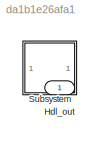
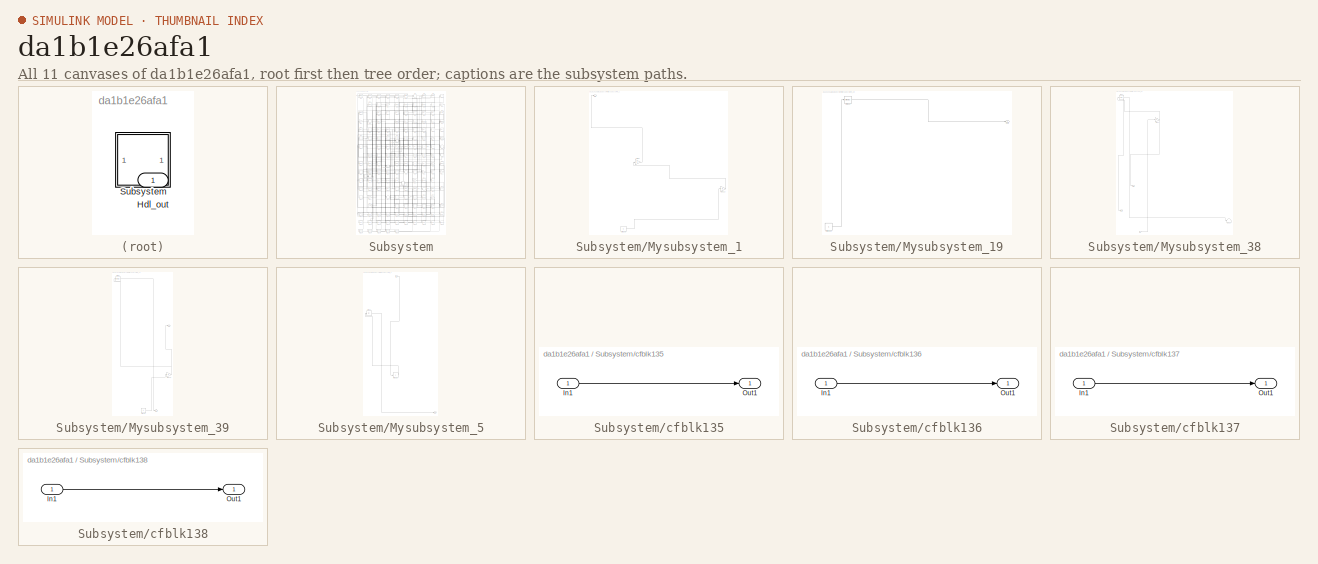
[diagram: thumbnail index - all 11 canvases of the model, root first then tree order]
MODEL slx_da1b1e26afa1
KIND model
CONFIG AbsTol = auto
CONFIG EnableMultiTasking = off
CONFIG FixedStep = auto
CONFIG MaxStep = auto
CONFIG MinStep = auto
CONFIG RelTol = 1e-3
CONFIG SampleTimeConstraint = Unconstrained
CONFIG SolverName = VariableStepAuto
CONFIG StartTime = 0.0
CONFIG StopTime = 10.0
BLOCK [Outport] Hdl_out
  OutDataTypeStr = uint8
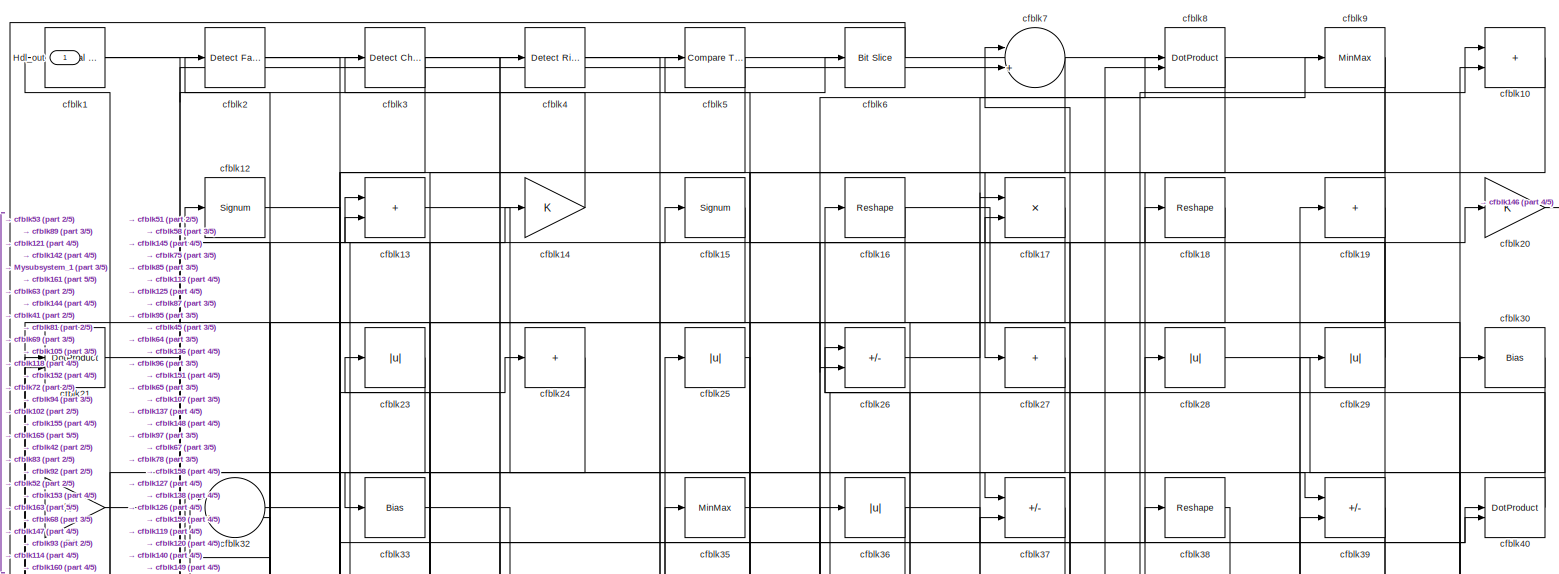
[diagram: Subsystem - part 1/5, full width, top band]
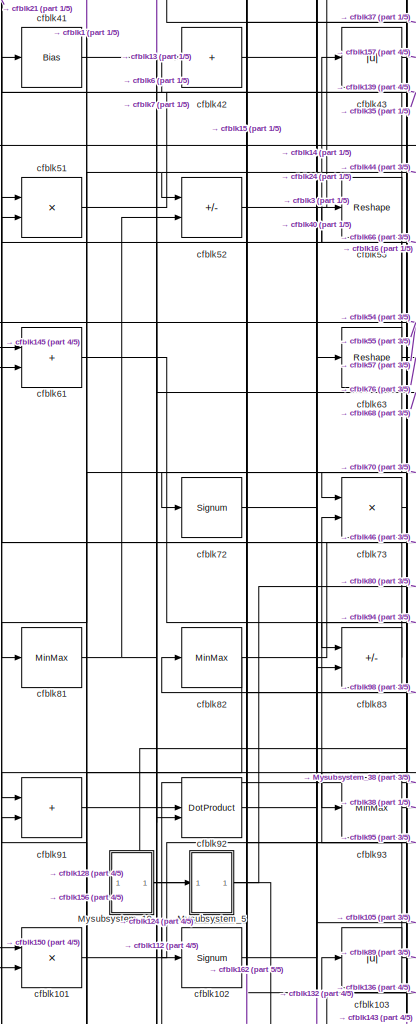
[diagram: Subsystem - part 2/5, middle left region]
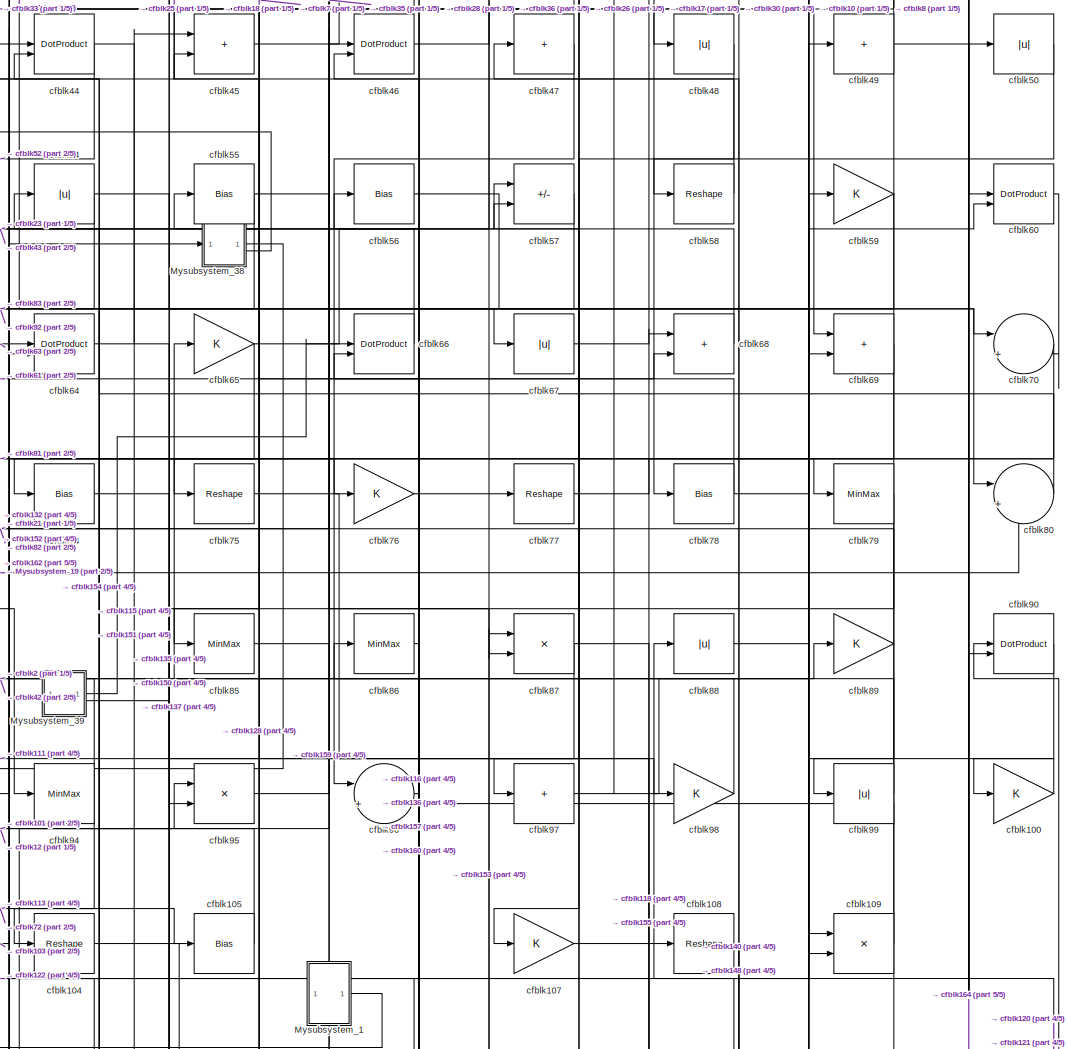
[diagram: Subsystem - part 3/5, central region]
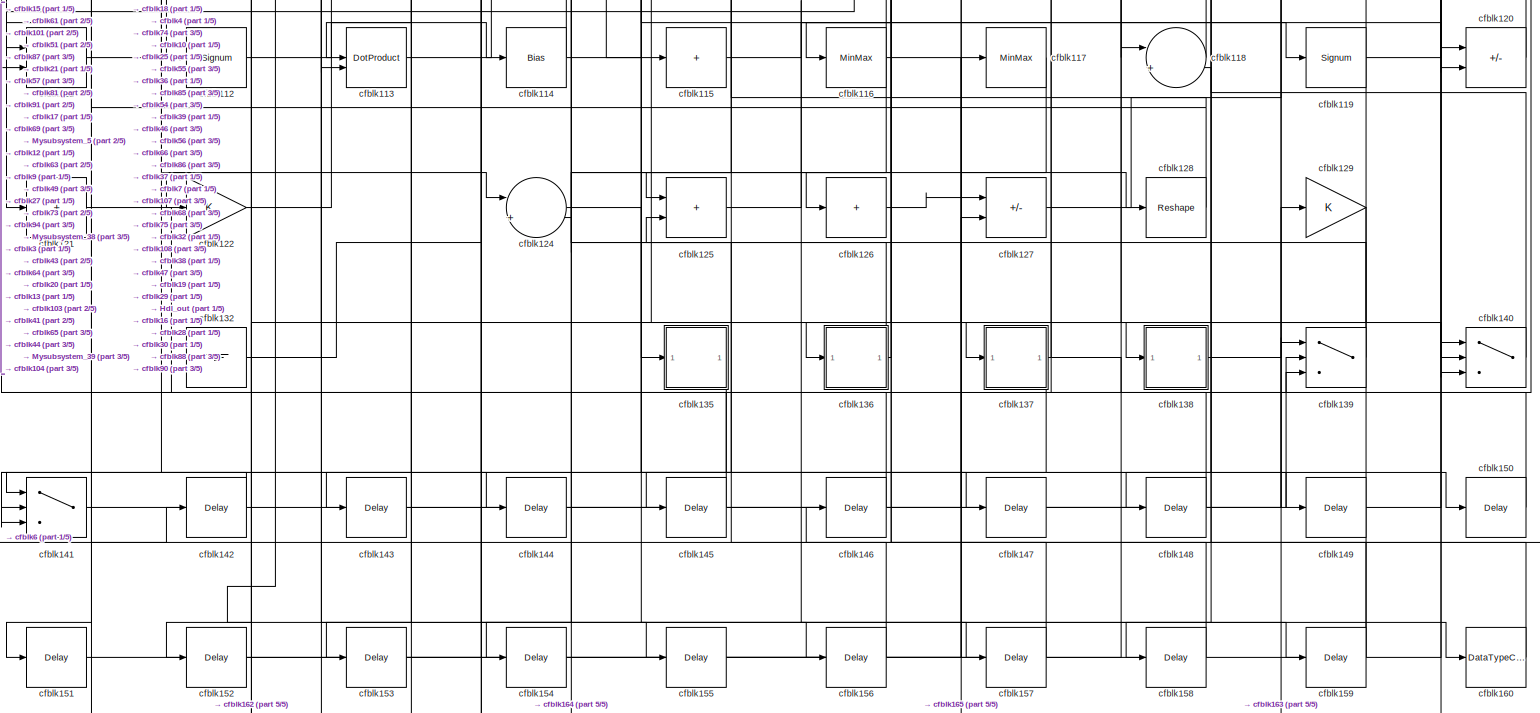
[diagram: Subsystem - part 4/5, full width, bottom band]
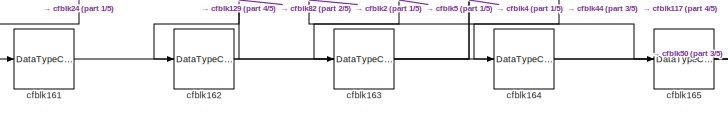
[diagram: Subsystem - part 5/5, bottom left region]
BLOCK [SubSystem] Subsystem
BLOCK [Outport] Subsystem/Hdl_out
  OutDataTypeStr = uint8
BLOCK [SubSystem] Subsystem/Mysubsystem_1
  RTWFcnName = Mysubsystem_1
  RTWFcnNameOpts = User specified
  RTWFileNameOpts = Use function name
  RTWSystemCode = Reusable function
  TreatAsAtomicUnit = on
BLOCK [Outport] Subsystem/Mysubsystem_1/Out1
BLOCK [Gain] Subsystem/Mysubsystem_1/cfblk110
BLOCK [Constant] Subsystem/Mysubsystem_1/cfblk133
  SampleTime = -1
BLOCK [Gain] Subsystem/Mysubsystem_1/cfblk84
BLOCK [SubSystem] Subsystem/Mysubsystem_19
  RTWFcnName = Mysubsystem_19
  RTWFcnNameOpts = User specified
  RTWFileNameOpts = Use function name
  RTWSystemCode = Reusable function
  TreatAsAtomicUnit = on
BLOCK [Outport] Subsystem/Mysubsystem_19/Out1
BLOCK [Constant] Subsystem/Mysubsystem_19/cfblk131
  SampleTime = -1
BLOCK [MinMax] Subsystem/Mysubsystem_19/cfblk62
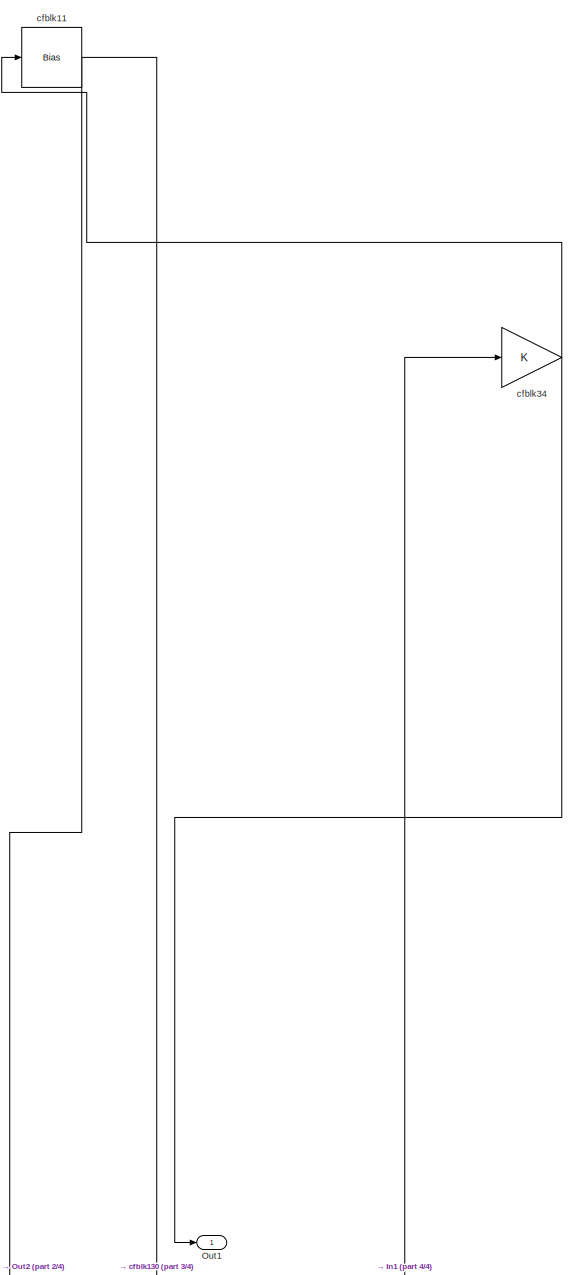
[diagram: Subsystem/Mysubsystem_38 - part 1/4, middle left region]
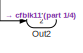
[diagram: Subsystem/Mysubsystem_38 - part 2/4, bottom left region]
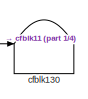
[diagram: Subsystem/Mysubsystem_38 - part 3/4, bottom right region]
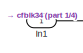
[diagram: Subsystem/Mysubsystem_38 - part 4/4, bottom left region]
BLOCK [SubSystem] Subsystem/Mysubsystem_38
  RTWFcnName = Mysubsystem_38
  RTWFcnNameOpts = User specified
  RTWFileNameOpts = Use function name
  RTWSystemCode = Reusable function
  TreatAsAtomicUnit = on
BLOCK [Inport] Subsystem/Mysubsystem_38/In1
BLOCK [Outport] Subsystem/Mysubsystem_38/Out1
BLOCK [Outport] Subsystem/Mysubsystem_38/Out2
  Port = 2
BLOCK [Bias] Subsystem/Mysubsystem_38/cfblk11
  Bias = 0.0
  SaturateOnIntegerOverflow = off
BLOCK [Terminator] Subsystem/Mysubsystem_38/cfblk130
BLOCK [Gain] Subsystem/Mysubsystem_38/cfblk34
BLOCK [SubSystem] Subsystem/Mysubsystem_39
  RTWFcnName = Mysubsystem_39
  RTWFcnNameOpts = User specified
  RTWFileNameOpts = Use function name
  RTWSystemCode = Reusable function
  TreatAsAtomicUnit = on
BLOCK [Outport] Subsystem/Mysubsystem_39/Out1
BLOCK [Outport] Subsystem/Mysubsystem_39/Out2
  Port = 2
BLOCK [Gain] Subsystem/Mysubsystem_39/cfblk106
BLOCK [Constant] Subsystem/Mysubsystem_39/cfblk134
  SampleTime = -1
BLOCK [MinMax] Subsystem/Mysubsystem_39/cfblk22
BLOCK [SubSystem] Subsystem/Mysubsystem_5
  RTWFcnName = Mysubsystem_5
  RTWFcnNameOpts = User specified
  RTWFileNameOpts = Use function name
  RTWSystemCode = Reusable function
  TreatAsAtomicUnit = on
BLOCK [Inport] Subsystem/Mysubsystem_5/In1
BLOCK [Outport] Subsystem/Mysubsystem_5/Out1
BLOCK [Sum] Subsystem/Mysubsystem_5/cfblk123
  IconShape = rectangular
  Inputs = +
BLOCK [Abs] Subsystem/Mysubsystem_5/cfblk71
  SaturateOnIntegerOverflow = off
BLOCK [Reference] Subsystem/cfblk1  REF=hdlsllib/Logic and Bit
Operations/Interval Test
  SourceBlock = hdlsllib/Logic and Bit\nOperations/Interval Test
  SourceType = Interval Test
BLOCK [Sum] Subsystem/cfblk10
  IconShape = rectangular
  OutDataTypeStr = uint8
BLOCK [Gain] Subsystem/cfblk100
  OutDataTypeStr = uint8
BLOCK [Product] Subsystem/cfblk101
  Inputs = */
  OutDataTypeStr = uint8
  RndMeth = Zero
  SaturateOnIntegerOverflow = on
BLOCK [Signum] Subsystem/cfblk102
BLOCK [Abs] Subsystem/cfblk103
  OutDataTypeStr = uint8
  SaturateOnIntegerOverflow = off
BLOCK [Reshape] Subsystem/cfblk104
BLOCK [Bias] Subsystem/cfblk105
  Bias = 0.0
  SaturateOnIntegerOverflow = off
BLOCK [Gain] Subsystem/cfblk107
  OutDataTypeStr = uint8
BLOCK [Reshape] Subsystem/cfblk108
BLOCK [Product] Subsystem/cfblk109
  Inputs = */
  OutDataTypeStr = uint8
  RndMeth = Zero
  SaturateOnIntegerOverflow = on
BLOCK [Product] Subsystem/cfblk111
  Inputs = */
  OutDataTypeStr = uint8
  RndMeth = Zero
  SaturateOnIntegerOverflow = on
BLOCK [Signum] Subsystem/cfblk112
BLOCK [DotProduct] Subsystem/cfblk113
  OutDataTypeStr = uint8
BLOCK [Bias] Subsystem/cfblk114
  Bias = 0.0
  SaturateOnIntegerOverflow = off
BLOCK [Sum] Subsystem/cfblk115
  IconShape = rectangular
  Inputs = +
  OutDataTypeStr = uint8
BLOCK [MinMax] Subsystem/cfblk116
  OutDataTypeStr = uint8
BLOCK [MinMax] Subsystem/cfblk117
  OutDataTypeStr = uint8
BLOCK [Sum] Subsystem/cfblk118
  Inputs = |++
  OutDataTypeStr = uint8
BLOCK [Signum] Subsystem/cfblk119
BLOCK [Signum] Subsystem/cfblk12
BLOCK [Sum] Subsystem/cfblk120
  IconShape = rectangular
  Inputs = +-
  OutDataTypeStr = uint8
BLOCK [Sum] Subsystem/cfblk121
  IconShape = rectangular
  Inputs = +
  OutDataTypeStr = uint8
BLOCK [Gain] Subsystem/cfblk122
  OutDataTypeStr = uint8
BLOCK [Sum] Subsystem/cfblk124
  Inputs = |++
  OutDataTypeStr = uint8
BLOCK [Sum] Subsystem/cfblk125
  IconShape = rectangular
  OutDataTypeStr = uint8
BLOCK [Sum] Subsystem/cfblk126
  IconShape = rectangular
  Inputs = +
  OutDataTypeStr = uint8
BLOCK [Sum] Subsystem/cfblk127
  IconShape = rectangular
  Inputs = +-
  OutDataTypeStr = uint8
BLOCK [Reshape] Subsystem/cfblk128
BLOCK [Gain] Subsystem/cfblk129
  OutDataTypeStr = uint8
BLOCK [Sum] Subsystem/cfblk13
  IconShape = rectangular
  OutDataTypeStr = uint8
BLOCK [Ground] Subsystem/cfblk132
BLOCK [SubSystem] Subsystem/cfblk135
  LibrarySourceBlock = hdlsllib/Ports &\nSubsystems/Subsystem
BLOCK [Inport] Subsystem/cfblk135/In1
BLOCK [Outport] Subsystem/cfblk135/Out1
BLOCK [SubSystem] Subsystem/cfblk136
  LibrarySourceBlock = hdlsllib/Ports &\nSubsystems/Subsystem
BLOCK [Inport] Subsystem/cfblk136/In1
BLOCK [Outport] Subsystem/cfblk136/Out1
BLOCK [SubSystem] Subsystem/cfblk137
  LibrarySourceBlock = hdlsllib/Ports &\nSubsystems/Subsystem
BLOCK [Inport] Subsystem/cfblk137/In1
BLOCK [Outport] Subsystem/cfblk137/Out1
BLOCK [SubSystem] Subsystem/cfblk138
  LibrarySourceBlock = hdlsllib/Ports &\nSubsystems/Subsystem
BLOCK [Inport] Subsystem/cfblk138/In1
BLOCK [Outport] Subsystem/cfblk138/Out1
BLOCK [Switch] Subsystem/cfblk139
  InputSameDT = off
  OutDataTypeStr = uint8
  SaturateOnIntegerOverflow = off
BLOCK [Gain] Subsystem/cfblk14
  OutDataTypeStr = uint8
BLOCK [Switch] Subsystem/cfblk140
  InputSameDT = off
  OutDataTypeStr = uint8
  SaturateOnIntegerOverflow = off
BLOCK [Switch] Subsystem/cfblk141
  InputSameDT = off
  OutDataTypeStr = uint8
  SaturateOnIntegerOverflow = off
BLOCK [Delay] Subsystem/cfblk142
  InputPortMap = u0
  SampleTime = 1
BLOCK [Delay] Subsystem/cfblk143
  InputPortMap = u0
  SampleTime = 1
BLOCK [Delay] Subsystem/cfblk144
  InputPortMap = u0
  SampleTime = 1
BLOCK [Delay] Subsystem/cfblk145
  InputPortMap = u0
  SampleTime = 1
BLOCK [Delay] Subsystem/cfblk146
  InputPortMap = u0
  SampleTime = 1
BLOCK [Delay] Subsystem/cfblk147
  InputPortMap = u0
  SampleTime = 1
BLOCK [Delay] Subsystem/cfblk148
  InputPortMap = u0
  SampleTime = 1
BLOCK [Delay] Subsystem/cfblk149
  InputPortMap = u0
  SampleTime = 1
BLOCK [Signum] Subsystem/cfblk15
BLOCK [Delay] Subsystem/cfblk150
  InputPortMap = u0
  SampleTime = 1
BLOCK [Delay] Subsystem/cfblk151
  InputPortMap = u0
  SampleTime = 1
BLOCK [Delay] Subsystem/cfblk152
  InputPortMap = u0
  SampleTime = 1
BLOCK [Delay] Subsystem/cfblk153
  InputPortMap = u0
  SampleTime = 1
BLOCK [Delay] Subsystem/cfblk154
  InputPortMap = u0
  SampleTime = 1
BLOCK [Delay] Subsystem/cfblk155
  InputPortMap = u0
  SampleTime = 1
BLOCK [Delay] Subsystem/cfblk156
  InputPortMap = u0
  SampleTime = 1
BLOCK [Delay] Subsystem/cfblk157
  InputPortMap = u0
  SampleTime = 1
BLOCK [Delay] Subsystem/cfblk158
  InputPortMap = u0
  SampleTime = 1
BLOCK [Delay] Subsystem/cfblk159
  InputPortMap = u0
  SampleTime = 1
BLOCK [Reshape] Subsystem/cfblk16
BLOCK [DataTypeConversion] Subsystem/cfblk160
  OutDataTypeStr = uint8
  RndMeth = Floor
  SaturateOnIntegerOverflow = off
BLOCK [DataTypeConversion] Subsystem/cfblk161
  OutDataTypeStr = uint8
  RndMeth = Floor
  SaturateOnIntegerOverflow = off
BLOCK [DataTypeConversion] Subsystem/cfblk162
  OutDataTypeStr = uint8
  RndMeth = Floor
  SaturateOnIntegerOverflow = off
BLOCK [DataTypeConversion] Subsystem/cfblk163
  OutDataTypeStr = uint8
  RndMeth = Floor
  SaturateOnIntegerOverflow = off
BLOCK [DataTypeConversion] Subsystem/cfblk164
  OutDataTypeStr = uint8
  RndMeth = Floor
  SaturateOnIntegerOverflow = off
BLOCK [DataTypeConversion] Subsystem/cfblk165
  OutDataTypeStr = uint8
  RndMeth = Floor
  SaturateOnIntegerOverflow = off
BLOCK [Product] Subsystem/cfblk17
  Inputs = */
  OutDataTypeStr = uint8
  RndMeth = Zero
  SaturateOnIntegerOverflow = on
BLOCK [Reshape] Subsystem/cfblk18
BLOCK [Sum] Subsystem/cfblk19
  IconShape = rectangular
  Inputs = +
  OutDataTypeStr = uint8
BLOCK [Reference] Subsystem/cfblk2  REF=hdlsllib/Logic and Bit
Operations/Detect Fall
Nonpositive
  SourceBlock = hdlsllib/Logic and Bit\nOperations/Detect Fall\nNonpositive
  SourceType = Detect Fall Nonpositive
BLOCK [Gain] Subsystem/cfblk20
  OutDataTypeStr = uint8
BLOCK [DotProduct] Subsystem/cfblk21
  OutDataTypeStr = uint8
BLOCK [Abs] Subsystem/cfblk23
  OutDataTypeStr = uint8
  SaturateOnIntegerOverflow = off
BLOCK [Sum] Subsystem/cfblk24
  IconShape = rectangular
  Inputs = +
  OutDataTypeStr = uint8
BLOCK [Abs] Subsystem/cfblk25
  OutDataTypeStr = uint8
  SaturateOnIntegerOverflow = off
BLOCK [Sum] Subsystem/cfblk26
  IconShape = rectangular
  Inputs = +-
  OutDataTypeStr = uint8
BLOCK [Sum] Subsystem/cfblk27
  IconShape = rectangular
  Inputs = +
  OutDataTypeStr = uint8
BLOCK [Abs] Subsystem/cfblk28
  OutDataTypeStr = uint8
  SaturateOnIntegerOverflow = off
BLOCK [Abs] Subsystem/cfblk29
  OutDataTypeStr = uint8
  SaturateOnIntegerOverflow = off
BLOCK [Reference] Subsystem/cfblk3  REF=simulink/Logic and Bit
Operations/Detect
Change
  LibrarySourceBlock = hdlsllib/Logic and Bit\nOperations/Detect\nChange
  SourceBlock = simulink/Logic and Bit\nOperations/Detect\nChange
  SourceType = Detect Change
BLOCK [Bias] Subsystem/cfblk30
  Bias = 0.0
  SaturateOnIntegerOverflow = off
BLOCK [Gain] Subsystem/cfblk31
  OutDataTypeStr = uint8
BLOCK [Sum] Subsystem/cfblk32
  Inputs = |++
  OutDataTypeStr = uint8
BLOCK [Bias] Subsystem/cfblk33
  Bias = 0.0
  SaturateOnIntegerOverflow = off
BLOCK [MinMax] Subsystem/cfblk35
  OutDataTypeStr = uint8
BLOCK [Abs] Subsystem/cfblk36
  OutDataTypeStr = uint8
  SaturateOnIntegerOverflow = off
BLOCK [Sum] Subsystem/cfblk37
  IconShape = rectangular
  Inputs = +-
  OutDataTypeStr = uint8
BLOCK [Reshape] Subsystem/cfblk38
BLOCK [Sum] Subsystem/cfblk39
  IconShape = rectangular
  Inputs = +-
  OutDataTypeStr = uint8
BLOCK [Reference] Subsystem/cfblk4  REF=hdlsllib/Logic and Bit
Operations/Detect Rise
Positive
  SourceBlock = hdlsllib/Logic and Bit\nOperations/Detect Rise\nPositive
  SourceType = Detect Rise Positive
BLOCK [DotProduct] Subsystem/cfblk40
  OutDataTypeStr = uint8
BLOCK [Bias] Subsystem/cfblk41
  Bias = 0.0
  SaturateOnIntegerOverflow = off
BLOCK [Sum] Subsystem/cfblk42
  IconShape = rectangular
  Inputs = +
  OutDataTypeStr = uint8
BLOCK [Abs] Subsystem/cfblk43
  OutDataTypeStr = uint8
  SaturateOnIntegerOverflow = off
BLOCK [DotProduct] Subsystem/cfblk44
  OutDataTypeStr = uint8
BLOCK [Sum] Subsystem/cfblk45
  IconShape = rectangular
  OutDataTypeStr = uint8
BLOCK [DotProduct] Subsystem/cfblk46
  OutDataTypeStr = uint8
BLOCK [Sum] Subsystem/cfblk47
  IconShape = rectangular
  Inputs = +
  OutDataTypeStr = uint8
BLOCK [Abs] Subsystem/cfblk48
  OutDataTypeStr = uint8
  SaturateOnIntegerOverflow = off
BLOCK [Sum] Subsystem/cfblk49
  IconShape = rectangular
  Inputs = +
  OutDataTypeStr = uint8
BLOCK [Reference] Subsystem/cfblk5  REF=hdlsllib/Logic and Bit
Operations/Compare
To Constant
  SourceBlock = hdlsllib/Logic and Bit\nOperations/Compare\nTo Constant
  SourceType = Compare To Constant
BLOCK [Abs] Subsystem/cfblk50
  OutDataTypeStr = uint8
  SaturateOnIntegerOverflow = off
BLOCK [Product] Subsystem/cfblk51
  Inputs = */
  OutDataTypeStr = uint8
  RndMeth = Zero
  SaturateOnIntegerOverflow = on
BLOCK [Sum] Subsystem/cfblk52
  IconShape = rectangular
  Inputs = +-
  OutDataTypeStr = uint8
BLOCK [Reshape] Subsystem/cfblk53
BLOCK [Abs] Subsystem/cfblk54
  OutDataTypeStr = uint8
  SaturateOnIntegerOverflow = off
BLOCK [Bias] Subsystem/cfblk55
  Bias = 0.0
  SaturateOnIntegerOverflow = off
BLOCK [Bias] Subsystem/cfblk56
  Bias = 0.0
  SaturateOnIntegerOverflow = off
BLOCK [Sum] Subsystem/cfblk57
  IconShape = rectangular
  Inputs = +-
  OutDataTypeStr = uint8
BLOCK [Reshape] Subsystem/cfblk58
BLOCK [Gain] Subsystem/cfblk59
  OutDataTypeStr = uint8
BLOCK [Reference] Subsystem/cfblk6  REF=hdlsllib/Logic and Bit
Operations/Bit Slice
  SourceBlock = hdlsllib/Logic and Bit\nOperations/Bit Slice
  SourceType = Bit Slice
BLOCK [DotProduct] Subsystem/cfblk60
  OutDataTypeStr = uint8
BLOCK [Sum] Subsystem/cfblk61
  IconShape = rectangular
  OutDataTypeStr = uint8
BLOCK [Reshape] Subsystem/cfblk63
BLOCK [DotProduct] Subsystem/cfblk64
  OutDataTypeStr = uint8
BLOCK [Gain] Subsystem/cfblk65
  OutDataTypeStr = uint8
BLOCK [DotProduct] Subsystem/cfblk66
  OutDataTypeStr = uint8
BLOCK [Abs] Subsystem/cfblk67
  OutDataTypeStr = uint8
  SaturateOnIntegerOverflow = off
BLOCK [Sum] Subsystem/cfblk68
  IconShape = rectangular
  OutDataTypeStr = uint8
BLOCK [Sum] Subsystem/cfblk69
  IconShape = rectangular
  OutDataTypeStr = uint8
BLOCK [Sum] Subsystem/cfblk7
  Inputs = |++
  OutDataTypeStr = uint8
BLOCK [Sum] Subsystem/cfblk70
  Inputs = |++
  OutDataTypeStr = uint8
BLOCK [Signum] Subsystem/cfblk72
BLOCK [Product] Subsystem/cfblk73
  Inputs = */
  OutDataTypeStr = uint8
  RndMeth = Zero
  SaturateOnIntegerOverflow = on
BLOCK [Bias] Subsystem/cfblk74
  Bias = 0.0
  SaturateOnIntegerOverflow = off
BLOCK [Reshape] Subsystem/cfblk75
BLOCK [Gain] Subsystem/cfblk76
  OutDataTypeStr = uint8
BLOCK [Reshape] Subsystem/cfblk77
BLOCK [Bias] Subsystem/cfblk78
  Bias = 0.0
  SaturateOnIntegerOverflow = off
BLOCK [MinMax] Subsystem/cfblk79
  OutDataTypeStr = uint8
BLOCK [DotProduct] Subsystem/cfblk8
  OutDataTypeStr = uint8
BLOCK [Sum] Subsystem/cfblk80
  Inputs = |++
  OutDataTypeStr = uint8
BLOCK [MinMax] Subsystem/cfblk81
  OutDataTypeStr = uint8
BLOCK [MinMax] Subsystem/cfblk82
  OutDataTypeStr = uint8
BLOCK [Sum] Subsystem/cfblk83
  IconShape = rectangular
  Inputs = +-
  OutDataTypeStr = uint8
BLOCK [MinMax] Subsystem/cfblk85
  OutDataTypeStr = uint8
BLOCK [MinMax] Subsystem/cfblk86
  OutDataTypeStr = uint8
BLOCK [Product] Subsystem/cfblk87
  Inputs = */
  OutDataTypeStr = uint8
  RndMeth = Zero
  SaturateOnIntegerOverflow = on
BLOCK [Abs] Subsystem/cfblk88
  OutDataTypeStr = uint8
  SaturateOnIntegerOverflow = off
BLOCK [Gain] Subsystem/cfblk89
  OutDataTypeStr = uint8
BLOCK [MinMax] Subsystem/cfblk9
  OutDataTypeStr = uint8
BLOCK [DotProduct] Subsystem/cfblk90
  OutDataTypeStr = uint8
BLOCK [Sum] Subsystem/cfblk91
  IconShape = rectangular
  OutDataTypeStr = uint8
BLOCK [DotProduct] Subsystem/cfblk92
  OutDataTypeStr = uint8
BLOCK [MinMax] Subsystem/cfblk93
  OutDataTypeStr = uint8
BLOCK [MinMax] Subsystem/cfblk94
  OutDataTypeStr = uint8
BLOCK [Product] Subsystem/cfblk95
  Inputs = */
  OutDataTypeStr = uint8
  RndMeth = Zero
  SaturateOnIntegerOverflow = on
BLOCK [Sum] Subsystem/cfblk96
  Inputs = |++
  OutDataTypeStr = uint8
BLOCK [Sum] Subsystem/cfblk97
  IconShape = rectangular
  Inputs = +
  OutDataTypeStr = uint8
BLOCK [Gain] Subsystem/cfblk98
  OutDataTypeStr = uint8
BLOCK [Abs] Subsystem/cfblk99
  OutDataTypeStr = uint8
  SaturateOnIntegerOverflow = off
LINE Subsystem/Mysubsystem_1/cfblk110:1 -> Subsystem/Mysubsystem_1/cfblk84:1
LINE Subsystem/Mysubsystem_1/cfblk133:1 -> Subsystem/Mysubsystem_1/cfblk110:1
LINE Subsystem/Mysubsystem_1/cfblk84:1 -> Subsystem/Mysubsystem_1/Out1:1
LINE Subsystem/Mysubsystem_19/cfblk131:1 -> Subsystem/Mysubsystem_19/cfblk62:1
LINE Subsystem/Mysubsystem_19/cfblk62:1 -> Subsystem/Mysubsystem_19/Out1:1
LINE Subsystem/Mysubsystem_19:1 -> Subsystem/cfblk80:2
LINE Subsystem/Mysubsystem_1:1 -> Subsystem/cfblk31:1
LINE Subsystem/Mysubsystem_38/In1:1 -> Subsystem/Mysubsystem_38/cfblk34:1
NET Subsystem/Mysubsystem_38/cfblk11:1 -> Subsystem/Mysubsystem_38/Out2:1, Subsystem/Mysubsystem_38/cfblk130:1
NET Subsystem/Mysubsystem_38/cfblk34:1 -> Subsystem/Mysubsystem_38/Out1:1, Subsystem/Mysubsystem_38/cfblk11:1
LINE Subsystem/Mysubsystem_38:1 -> Subsystem/cfblk92:1
LINE Subsystem/Mysubsystem_38:2 -> Subsystem/cfblk111:2
NET Subsystem/Mysubsystem_39/cfblk106:1 -> Subsystem/Mysubsystem_39/Out1:1, Subsystem/Mysubsystem_39/cfblk22:1
LINE Subsystem/Mysubsystem_39/cfblk134:1 -> Subsystem/Mysubsystem_39/cfblk106:1
LINE Subsystem/Mysubsystem_39/cfblk22:1 -> Subsystem/Mysubsystem_39/Out2:1
LINE Subsystem/Mysubsystem_39:1 -> Subsystem/cfblk66:1
LINE Subsystem/Mysubsystem_39:2 -> Subsystem/cfblk135:1
LINE Subsystem/Mysubsystem_5/In1:1 -> Subsystem/Mysubsystem_5/cfblk123:1
LINE Subsystem/Mysubsystem_5/cfblk123:1 -> Subsystem/Mysubsystem_5/cfblk71:1
LINE Subsystem/Mysubsystem_5/cfblk71:1 -> Subsystem/Mysubsystem_5/Out1:1
LINE Subsystem/Mysubsystem_5:1 -> Subsystem/cfblk156:1
LINE Subsystem/cfblk100:1 -> Subsystem/cfblk99:1
LINE Subsystem/cfblk101:1 -> Subsystem/cfblk95:1
LINE Subsystem/cfblk102:1 -> Subsystem/cfblk24:1
NET Subsystem/cfblk103:1 -> Subsystem/cfblk53:1, Subsystem/cfblk73:2, Subsystem/cfblk89:1
NET Subsystem/cfblk104:1 -> Subsystem/cfblk120:2, Subsystem/cfblk137:1
LINE Subsystem/cfblk105:1 -> Subsystem/cfblk12:1
LINE Subsystem/cfblk107:1 -> Subsystem/cfblk140:2
LINE Subsystem/cfblk108:1 -> Subsystem/cfblk148:1
LINE Subsystem/cfblk109:1 -> Subsystem/cfblk96:2
LINE Subsystem/cfblk10:1 -> Subsystem/cfblk125:1
LINE Subsystem/cfblk111:1 -> Subsystem/cfblk57:1
LINE Subsystem/cfblk112:1 -> Subsystem/cfblk114:1
LINE Subsystem/cfblk113:1 -> Subsystem/cfblk20:1
NET Subsystem/cfblk114:1 -> Subsystem/cfblk13:1, Subsystem/cfblk18:1
LINE Subsystem/cfblk115:1 -> Subsystem/cfblk119:1
NET Subsystem/cfblk116:1 -> Subsystem/cfblk124:2, Subsystem/cfblk128:1, Subsystem/cfblk140:3, Subsystem/cfblk54:1
LINE Subsystem/cfblk117:1 -> Subsystem/cfblk164:1
LINE Subsystem/cfblk118:1 -> Subsystem/cfblk32:2
LINE Subsystem/cfblk119:1 -> Subsystem/cfblk30:1
LINE Subsystem/cfblk120:1 -> Subsystem/cfblk88:1
LINE Subsystem/cfblk121:1 -> Subsystem/cfblk90:1
LINE Subsystem/cfblk122:1 -> Subsystem/cfblk49:1
LINE Subsystem/cfblk124:1 -> Subsystem/cfblk149:1
LINE Subsystem/cfblk125:1 -> Subsystem/cfblk36:1
LINE Subsystem/cfblk126:1 -> Subsystem/cfblk127:1
LINE Subsystem/cfblk127:1 -> Subsystem/cfblk29:1
NET Subsystem/cfblk128:1 -> Subsystem/cfblk55:1, Subsystem/cfblk91:2
LINE Subsystem/cfblk129:1 -> Subsystem/cfblk162:1
LINE Subsystem/cfblk12:1 -> Subsystem/cfblk155:1
NET Subsystem/cfblk132:1 -> Subsystem/Mysubsystem_38:1, Subsystem/cfblk63:1
LINE Subsystem/cfblk135/In1:1 -> Subsystem/cfblk135/Out1:1
LINE Subsystem/cfblk135:1 -> Subsystem/cfblk141:2
LINE Subsystem/cfblk136/In1:1 -> Subsystem/cfblk136/Out1:1
NET Subsystem/cfblk136:1 -> Subsystem/cfblk103:1, Subsystem/cfblk86:1
LINE Subsystem/cfblk137/In1:1 -> Subsystem/cfblk137/Out1:1
NET Subsystem/cfblk137:1 -> Subsystem/cfblk139:3, Subsystem/cfblk141:3, Subsystem/cfblk17:2
LINE Subsystem/cfblk138/In1:1 -> Subsystem/cfblk138/Out1:1
LINE Subsystem/cfblk138:1 -> Subsystem/cfblk19:1
LINE Subsystem/cfblk139:1 -> Subsystem/cfblk41:1
LINE Subsystem/cfblk13:1 -> Subsystem/cfblk37:1
LINE Subsystem/cfblk140:1 -> Subsystem/cfblk47:1
LINE Subsystem/cfblk141:1 -> Subsystem/cfblk139:2
LINE Subsystem/cfblk142:1 -> Subsystem/cfblk141:1
LINE Subsystem/cfblk143:1 -> Subsystem/cfblk139:1
LINE Subsystem/cfblk144:1 -> Subsystem/cfblk127:2
LINE Subsystem/cfblk145:1 -> Subsystem/cfblk61:1
LINE Subsystem/cfblk146:1 -> Subsystem/cfblk32:1
LINE Subsystem/cfblk147:1 -> Subsystem/cfblk39:2
LINE Subsystem/cfblk148:1 -> Subsystem/cfblk7:1
LINE Subsystem/cfblk149:1 -> Subsystem/cfblk10:2
LINE Subsystem/cfblk14:1 -> Subsystem/cfblk3:1
LINE Subsystem/cfblk150:1 -> Subsystem/cfblk101:1
LINE Subsystem/cfblk151:1 -> Subsystem/cfblk37:2
LINE Subsystem/cfblk152:1 -> Subsystem/cfblk64:1
LINE Subsystem/cfblk153:1 -> Subsystem/cfblk87:1
LINE Subsystem/cfblk154:1 -> Subsystem/cfblk90:2
LINE Subsystem/cfblk155:1 -> Subsystem/cfblk68:1
LINE Subsystem/cfblk156:1 -> Subsystem/cfblk51:2
LINE Subsystem/cfblk157:1 -> Subsystem/cfblk46:2
LINE Subsystem/cfblk158:1 -> Subsystem/cfblk125:2
NET Subsystem/cfblk159:1 -> Subsystem/Hdl_out:1, Subsystem/cfblk118:2
NET Subsystem/cfblk15:1 -> Subsystem/cfblk121:1, Subsystem/cfblk72:1
NET Subsystem/cfblk160:1 -> Subsystem/cfblk56:1, Subsystem/cfblk66:2
LINE Subsystem/cfblk161:1 -> Subsystem/cfblk4:1
NET Subsystem/cfblk162:1 -> Subsystem/cfblk44:1, Subsystem/cfblk82:1
LINE Subsystem/cfblk163:1 -> Subsystem/cfblk129:1
LINE Subsystem/cfblk164:1 -> Subsystem/cfblk50:1
LINE Subsystem/cfblk165:1 -> Subsystem/cfblk117:1
NET Subsystem/cfblk16:1 -> Subsystem/cfblk120:1, Subsystem/cfblk93:1
NET Subsystem/cfblk17:1 -> Subsystem/cfblk152:1, Subsystem/cfblk26:2
LINE Subsystem/cfblk18:1 -> Subsystem/cfblk85:1
LINE Subsystem/cfblk19:1 -> Subsystem/cfblk136:1
LINE Subsystem/cfblk1:1 -> Subsystem/cfblk39:1
LINE Subsystem/cfblk20:1 -> Subsystem/cfblk146:1
LINE Subsystem/cfblk21:1 -> Subsystem/cfblk144:1
LINE Subsystem/cfblk23:1 -> Subsystem/cfblk33:1
LINE Subsystem/cfblk24:1 -> Subsystem/cfblk161:1
LINE Subsystem/cfblk25:1 -> Subsystem/cfblk145:1
LINE Subsystem/cfblk26:1 -> Subsystem/cfblk9:1
LINE Subsystem/cfblk27:1 -> Subsystem/cfblk153:1
LINE Subsystem/cfblk28:1 -> Subsystem/cfblk140:1
LINE Subsystem/cfblk29:1 -> Subsystem/cfblk5:1
LINE Subsystem/cfblk2:1 -> Subsystem/cfblk165:1
LINE Subsystem/cfblk30:1 -> Subsystem/cfblk107:1
LINE Subsystem/cfblk31:1 -> Subsystem/cfblk69:1
LINE Subsystem/cfblk32:1 -> Subsystem/cfblk138:1
LINE Subsystem/cfblk33:1 -> Subsystem/cfblk67:1
LINE Subsystem/cfblk35:1 -> Subsystem/cfblk87:2
NET Subsystem/cfblk36:1 -> Subsystem/cfblk40:2, Subsystem/cfblk64:2
LINE Subsystem/cfblk37:1 -> Subsystem/cfblk102:1
LINE Subsystem/cfblk38:1 -> Subsystem/cfblk158:1
LINE Subsystem/cfblk39:1 -> Subsystem/cfblk126:1
NET Subsystem/cfblk3:1 -> Subsystem/cfblk147:1, Subsystem/cfblk83:2
LINE Subsystem/cfblk40:1 -> Subsystem/cfblk16:1
NET Subsystem/cfblk41:1 -> Subsystem/cfblk6:1, Subsystem/cfblk7:2
LINE Subsystem/cfblk42:1 -> Subsystem/cfblk14:1
NET Subsystem/cfblk43:1 -> Subsystem/Mysubsystem_5:1, Subsystem/cfblk157:1
NET Subsystem/cfblk44:1 -> Subsystem/cfblk115:1, Subsystem/cfblk151:1, Subsystem/cfblk52:1
LINE Subsystem/cfblk45:1 -> Subsystem/cfblk28:1
LINE Subsystem/cfblk46:1 -> Subsystem/cfblk48:1
LINE Subsystem/cfblk47:1 -> Subsystem/cfblk96:1
LINE Subsystem/cfblk48:1 -> Subsystem/cfblk97:1
LINE Subsystem/cfblk49:1 -> Subsystem/cfblk60:1
LINE Subsystem/cfblk4:1 -> Subsystem/cfblk160:1
LINE Subsystem/cfblk50:1 -> Subsystem/cfblk58:1
LINE Subsystem/cfblk51:1 -> Subsystem/cfblk35:1
LINE Subsystem/cfblk52:1 -> Subsystem/cfblk15:1
NET Subsystem/cfblk53:1 -> Subsystem/cfblk21:1, Subsystem/cfblk61:2
NET Subsystem/cfblk54:1 -> Subsystem/cfblk70:1, Subsystem/cfblk92:2
NET Subsystem/cfblk55:1 -> Subsystem/cfblk69:2, Subsystem/cfblk83:1
LINE Subsystem/cfblk56:1 -> Subsystem/cfblk80:1
LINE Subsystem/cfblk57:1 -> Subsystem/cfblk101:2
LINE Subsystem/cfblk58:1 -> Subsystem/cfblk25:1
LINE Subsystem/cfblk59:1 -> Subsystem/cfblk104:1
LINE Subsystem/cfblk5:1 -> Subsystem/cfblk163:1
LINE Subsystem/cfblk60:1 -> Subsystem/cfblk70:2
NET Subsystem/cfblk61:1 -> Subsystem/cfblk68:2, Subsystem/cfblk94:1
NET Subsystem/cfblk63:1 -> Subsystem/cfblk1:1, Subsystem/cfblk73:1, Subsystem/cfblk76:1
NET Subsystem/cfblk64:1 -> Subsystem/cfblk45:1, Subsystem/cfblk98:1
NET Subsystem/cfblk65:1 -> Subsystem/cfblk154:1, Subsystem/cfblk17:1
LINE Subsystem/cfblk66:1 -> Subsystem/cfblk43:1
LINE Subsystem/cfblk67:1 -> Subsystem/cfblk10:1
LINE Subsystem/cfblk68:1 -> Subsystem/cfblk23:1
LINE Subsystem/cfblk69:1 -> Subsystem/cfblk122:1
LINE Subsystem/cfblk6:1 -> Subsystem/cfblk142:1
LINE Subsystem/cfblk70:1 -> Subsystem/cfblk81:1
LINE Subsystem/cfblk72:1 -> Subsystem/cfblk105:1
LINE Subsystem/cfblk73:1 -> Subsystem/cfblk143:1
LINE Subsystem/cfblk74:1 -> Subsystem/cfblk150:1
LINE Subsystem/cfblk75:1 -> Subsystem/cfblk118:1
LINE Subsystem/cfblk76:1 -> Subsystem/cfblk77:1
LINE Subsystem/cfblk77:1 -> Subsystem/cfblk79:1
NET Subsystem/cfblk78:1 -> Subsystem/cfblk45:2, Subsystem/cfblk60:2
LINE Subsystem/cfblk79:1 -> Subsystem/cfblk95:2
LINE Subsystem/cfblk7:1 -> Subsystem/cfblk75:1
NET Subsystem/cfblk80:1 -> Subsystem/cfblk44:2, Subsystem/cfblk74:1
NET Subsystem/cfblk81:1 -> Subsystem/cfblk124:1, Subsystem/cfblk13:2, Subsystem/cfblk52:2
NET Subsystem/cfblk82:1 -> Subsystem/cfblk46:1, Subsystem/cfblk91:1
LINE Subsystem/cfblk83:1 -> Subsystem/cfblk51:1
LINE Subsystem/cfblk85:1 -> Subsystem/cfblk159:1
LINE Subsystem/cfblk86:1 -> Subsystem/cfblk116:1
NET Subsystem/cfblk87:1 -> Subsystem/cfblk108:1, Subsystem/cfblk111:1, Subsystem/cfblk57:2
LINE Subsystem/cfblk88:1 -> Subsystem/cfblk109:1
NET Subsystem/cfblk89:1 -> Subsystem/cfblk109:2, Subsystem/cfblk21:2
LINE Subsystem/cfblk8:1 -> Subsystem/cfblk78:1
LINE Subsystem/cfblk90:1 -> Subsystem/cfblk100:1
LINE Subsystem/cfblk91:1 -> Subsystem/cfblk112:1
LINE Subsystem/cfblk92:1 -> Subsystem/cfblk40:1
LINE Subsystem/cfblk93:1 -> Subsystem/cfblk38:1
NET Subsystem/cfblk94:1 -> Subsystem/cfblk113:1, Subsystem/cfblk2:1
LINE Subsystem/cfblk95:1 -> Subsystem/cfblk8:1
LINE Subsystem/cfblk96:1 -> Subsystem/cfblk26:1
NET Subsystem/cfblk97:1 -> Subsystem/cfblk59:1, Subsystem/cfblk8:2
LINE Subsystem/cfblk98:1 -> Subsystem/cfblk42:1
LINE Subsystem/cfblk99:1 -> Subsystem/cfblk65:1
NET Subsystem/cfblk9:1 -> Subsystem/cfblk113:2, Subsystem/cfblk27:1
note: NET lines group one-source signal fan-out (src -> all destinations, sorted); 1:1 wires keep LINE
